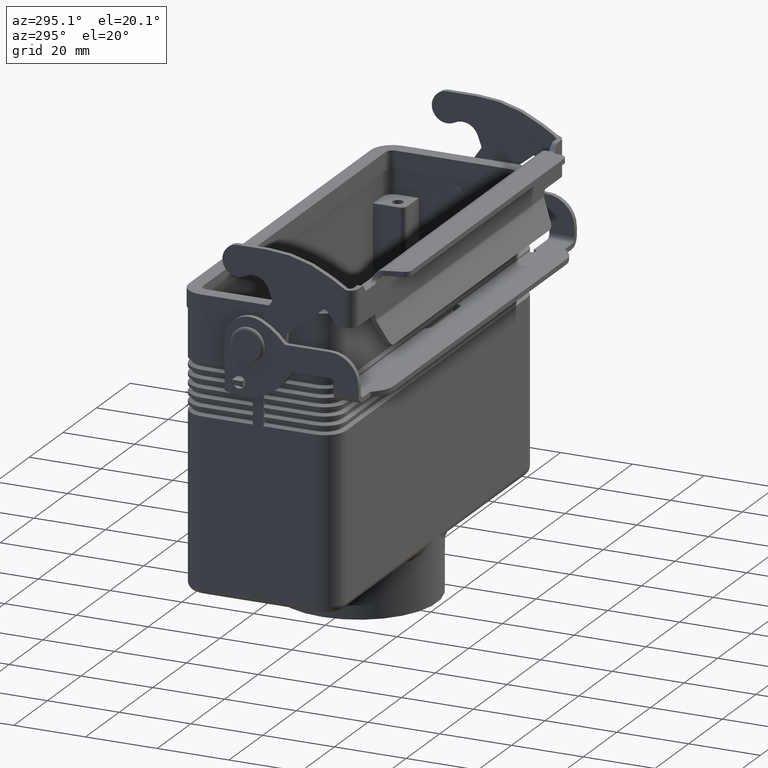
[diagram: clean part render]
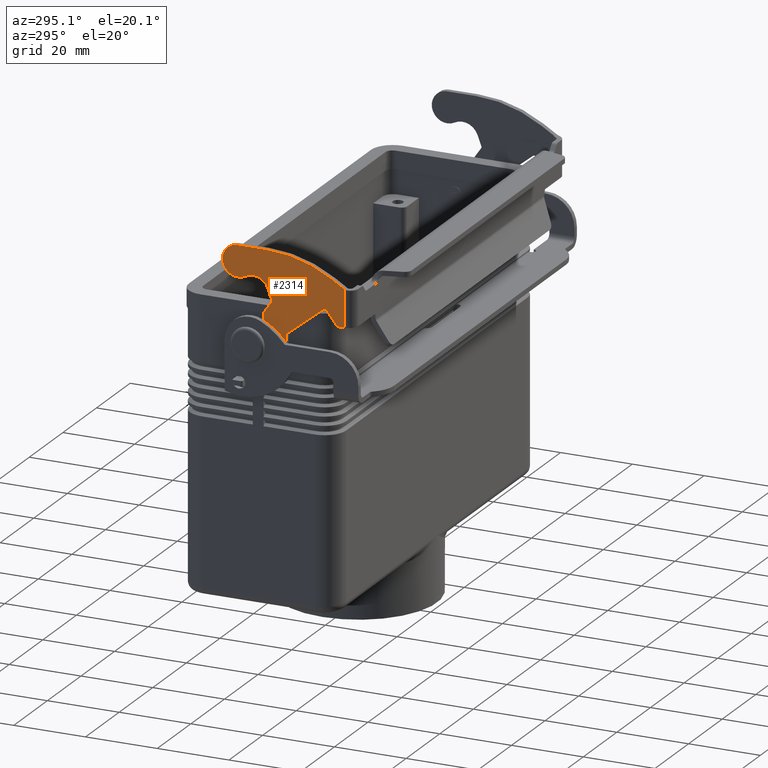
[diagram: same view with one face highlighted and labeled with its STEP entity id]
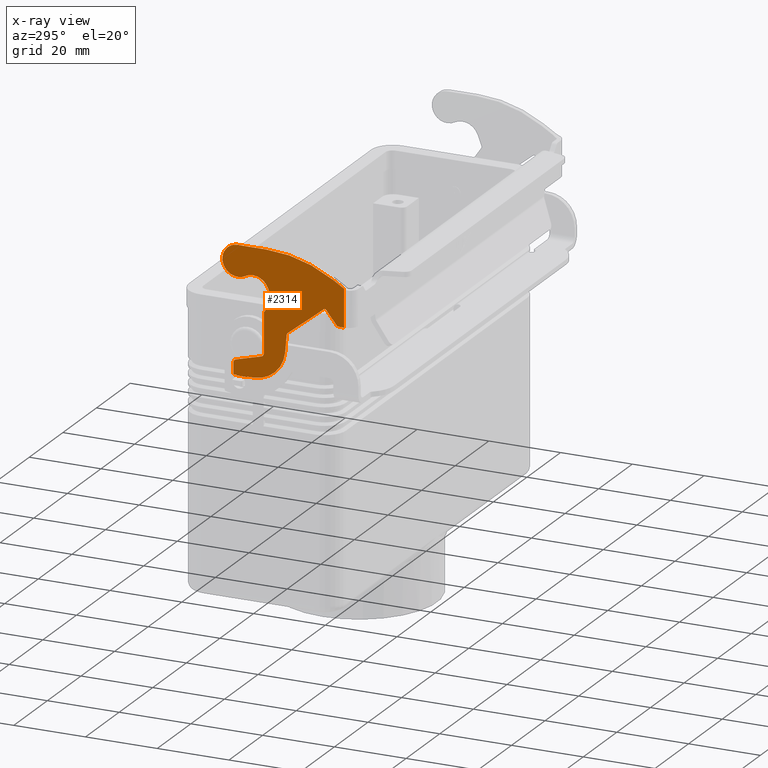
[diagram: x-ray of the same camera — body ghosted, the highlighted face saturated]
A machine part, auxiliary view. The second image highlights one B-rep face of the part: STEP entity #2314.
The next image is the same camera in x-ray: the body ghosted, the highlighted face saturated — about 0% of this face is hidden behind the body in this view.
In plain terms, the highlighted planar face has unit normal (1, 0, 0).
Its self-contained STEP definition (entity closure, byte-faithful):
#114=CARTESIAN_POINT('',(-63.0,6.342010229414635,24.462500000000006));
#115=VERTEX_POINT('',#114);
#131=CARTESIAN_POINT('',(-63.0,2.178553132241669,16.937500000000000));
#132=VERTEX_POINT('',#131);
#139=CARTESIAN_POINT('',(-63.0,4.260281680828153,20.700000000000003));
#140=DIRECTION('',(1.000000000000000,0.0,0.0));
#141=DIRECTION('',(0.0,-0.484122918275926,-0.875000000000000));
#142=AXIS2_PLACEMENT_3D('',#139,#140,#141);
#143=CIRCLE('',#142,4.299999999999999);
#144=EDGE_CURVE('',#132,#115,#143,.T.);
#2003=CARTESIAN_POINT('',(-62.999999999999972,4.500000000000000,-10.137654915007420));
#2004=VERTEX_POINT('',#2003);
#2022=CARTESIAN_POINT('',(-62.999999999999972,1.600000000000001,-10.137654915007426));
#2023=VERTEX_POINT('',#2022);
#2031=CARTESIAN_POINT('',(-62.999999999999972,4.500000000000000,-10.137654915007420));
#2032=DIRECTION('',(0.0,-1.0,0.0));
#2033=VECTOR('',#2032,2.900000000000000);
#2034=LINE('',#2031,#2033);
#2035=EDGE_CURVE('',#2004,#2023,#2034,.T.);
#2082=CARTESIAN_POINT('',(-62.999999999999979,-35.483796663666226,9.887825273182200));
#2083=DIRECTION('',(1.0,0.0,0.0));
#2084=DIRECTION('',(0.0,0.0,-1.0));
#2085=AXIS2_PLACEMENT_3D('',#2082,#2083,#2084);
#2086=PLANE('',#2085);
#2087=ORIENTED_EDGE('',*,*,#2035,.T.);
#2088=CARTESIAN_POINT('',(-63.0,1.600000000000001,-10.0));
#2089=VERTEX_POINT('',#2088);
#2090=CARTESIAN_POINT('',(-63.0,1.600000000000001,-10.0));
#2091=DIRECTION('',(2.064707E-013,0.0,-1.0));
#2092=VECTOR('',#2091,0.137654915007426);
#2093=LINE('',#2090,#2092);
#2094=EDGE_CURVE('',#2089,#2023,#2093,.T.);
#2095=ORIENTED_EDGE('',*,*,#2094,.F.);
#2096=CARTESIAN_POINT('',(-63.0,0.0,-10.0));
#2097=VERTEX_POINT('',#2096);
#2098=CARTESIAN_POINT('',(-63.0,0.0,-10.0));
#2099=DIRECTION('',(0.0,1.0,0.0));
#2100=VECTOR('',#2099,1.600000000000001);
#2101=LINE('',#2098,#2100);
#2102=EDGE_CURVE('',#2097,#2089,#2101,.T.);
#2103=ORIENTED_EDGE('',*,*,#2102,.F.);
#2104=CARTESIAN_POINT('',(-63.0,-8.965752282825712,-1.784401684728924));
#2105=VERTEX_POINT('',#2104);
#2106=CARTESIAN_POINT('',(-63.0,-5.551115E-016,-1.000000000000000));
#2107=DIRECTION('',(1.0,0.0,0.0));
#2108=DIRECTION('',(0.0,-0.996194698091746,-0.087155742747658));
#2109=AXIS2_PLACEMENT_3D('',#2106,#2107,#2108);
#2110=CIRCLE('',#2109,9.0);
#2111=EDGE_CURVE('',#2105,#2097,#2110,.T.);
#2112=ORIENTED_EDGE('',*,*,#2111,.F.);
#2113=CARTESIAN_POINT('',(-63.0,-9.388145761719624,3.043577871373832));
#2114=VERTEX_POINT('',#2113);
#2115=CARTESIAN_POINT('',(-63.0,-9.388145761719624,3.043577871373832));
#2116=DIRECTION('',(0.0,0.087155742747658,-0.996194698091746));
#2117=VECTOR('',#2116,4.846421653669671);
#2118=LINE('',#2115,#2117);
#2119=EDGE_CURVE('',#2114,#2105,#2118,.T.);
#2120=ORIENTED_EDGE('',*,*,#2119,.F.);
#2121=CARTESIAN_POINT('',(-63.0,-9.576051938572887,3.392149763092847));
#2122=VERTEX_POINT('',#2121);
#2123=CARTESIAN_POINT('',(-63.0,-9.886243110765498,3.000000000000003));
#2124=DIRECTION('',(-1.000000000000000,0.0,0.0));
#2125=DIRECTION('',(0.0,-0.996194698091746,-0.087155742747659));
#2126=AXIS2_PLACEMENT_3D('',#2123,#2124,#2125);
#2127=CIRCLE('',#2126,0.500000000000000);
#2128=EDGE_CURVE('',#2122,#2114,#2127,.T.);
#2129=ORIENTED_EDGE('',*,*,#2128,.F.);
#2130=CARTESIAN_POINT('',(-63.0,-19.689808827807390,11.392149763092847));
#2131=VERTEX_POINT('',#2130);
#2132=CARTESIAN_POINT('',(-63.0,-19.689808827807390,11.392149763092847));
#2133=DIRECTION('',(0.0,0.784299526185688,-0.620382344385223));
#2134=VECTOR('',#2133,12.895273491265641);
#2135=LINE('',#2132,#2134);
#2136=EDGE_CURVE('',#2131,#2122,#2135,.T.);
#2137=ORIENTED_EDGE('',*,*,#2136,.F.);
#2138=CARTESIAN_POINT('',(-63.0,-20.392149763092849,11.310191172192617));
#2139=VERTEX_POINT('',#2138);
#2140=CARTESIAN_POINT('',(-63.0,-19.999999999999996,11.000000000000004));
#2141=DIRECTION('',(-1.0,0.0,0.0));
#2142=DIRECTION('',(0.0,-0.620382344385220,-0.784299526185691));
#2143=AXIS2_PLACEMENT_3D('',#2140,#2141,#2142);
#2144=CIRCLE('',#2143,0.500000000000000);
#2145=EDGE_CURVE('',#2139,#2131,#2144,.T.);
#2146=ORIENTED_EDGE('',*,*,#2145,.F.);
#2147=CARTESIAN_POINT('',(-63.0,-23.215700473814316,7.740602990609832));
#2148=VERTEX_POINT('',#2147);
#2149=CARTESIAN_POINT('',(-63.0,-23.215700473814316,7.740602990609832));
#2150=DIRECTION('',(0.0,0.620382344385222,0.784299526185689));
#2151=VECTOR('',#2150,4.551307328901356);
#2152=LINE('',#2149,#2151);
#2153=EDGE_CURVE('',#2148,#2139,#2152,.T.);
#2154=ORIENTED_EDGE('',*,*,#2153,.F.);
#2155=CARTESIAN_POINT('',(-63.0,-24.000000000000004,7.360985334995051));
#2156=VERTEX_POINT('',#2155);
#2157=CARTESIAN_POINT('',(-63.0,-24.000000000000004,8.360985334995053));
#2158=DIRECTION('',(1.0,0.0,0.0));
#2159=DIRECTION('',(0.0,0.0,-1.0));
#2160=AXIS2_PLACEMENT_3D('',#2157,#2158,#2159);
#2161=CIRCLE('',#2160,1.0);
#2162=EDGE_CURVE('',#2156,#2148,#2161,.T.);
#2163=ORIENTED_EDGE('',*,*,#2162,.F.);
#2164=CARTESIAN_POINT('',(-62.999999999999972,-25.366637302590753,7.360985334995051));
#2165=VERTEX_POINT('',#2164);
#2166=CARTESIAN_POINT('',(-62.999999999999972,-25.366637302590753,7.360985334995051));
#2167=DIRECTION('',(0.0,1.0,0.0));
#2168=VECTOR('',#2167,1.366637302590750);
#2169=LINE('',#2166,#2168);
#2170=EDGE_CURVE('',#2165,#2156,#2169,.T.);
#2171=ORIENTED_EDGE('',*,*,#2170,.F.);
#2172=CARTESIAN_POINT('',(-62.999999999999972,-25.366637302590753,17.796241584191456));
#2173=VERTEX_POINT('',#2172);
#2174=CARTESIAN_POINT('',(-62.999999999999972,-25.366637302590753,7.360985334995051));
#2175=DIRECTION('',(0.0,0.0,1.0));
#2176=VECTOR('',#2175,10.435256249196406);
#2177=LINE('',#2174,#2176);
#2178=EDGE_CURVE('',#2165,#2173,#2177,.T.);
#2179=ORIENTED_EDGE('',*,*,#2178,.T.);
#2180=CARTESIAN_POINT('',(-63.0,-22.025445526428999,19.843461268790108));
#2181=VERTEX_POINT('',#2180);
#2182=CARTESIAN_POINT('',(-63.0,-22.025445526428999,19.843461268790108));
#2183=DIRECTION('',(7.253205E-015,-0.852670321965433,-0.522449348778774));
#2184=VECTOR('',#2183,3.918503658553752);
#2185=LINE('',#2182,#2184);
#2186=EDGE_CURVE('',#2181,#2173,#2185,.T.);
#2187=ORIENTED_EDGE('',*,*,#2186,.F.);
#2188=CARTESIAN_POINT('',(-63.0,-3.739718319171848,25.000000000000007));
#2189=VERTEX_POINT('',#2188);
#2190=CARTESIAN_POINT('',(-63.0,-3.739718319171848,-9.999999999999996));
#2191=DIRECTION('',(1.0,0.0,0.0));
#2192=DIRECTION('',(0.0,0.0,1.0));
#2193=AXIS2_PLACEMENT_3D('',#2190,#2191,#2192);
#2194=CIRCLE('',#2193,35.0);
#2195=EDGE_CURVE('',#2189,#2181,#2194,.T.);
#2196=ORIENTED_EDGE('',*,*,#2195,.F.);
#2197=CARTESIAN_POINT('',(-63.0,4.260281680828153,25.000000000000007));
#2198=VERTEX_POINT('',#2197);
#2199=CARTESIAN_POINT('',(-63.0,4.260281680828153,25.000000000000007));
#2200=DIRECTION('',(0.0,-1.0,0.0));
#2201=VECTOR('',#2200,8.0);
#2202=LINE('',#2199,#2201);
#2203=EDGE_CURVE('',#2198,#2189,#2202,.T.);
#2204=ORIENTED_EDGE('',*,*,#2203,.F.);
#2205=CARTESIAN_POINT('',(-63.0,4.260281680828153,20.700000000000003));
#2206=DIRECTION('',(1.000000000000000,0.0,0.0));
#2207=DIRECTION('',(0.0,-0.484122918275926,-0.875000000000000));
#2208=AXIS2_PLACEMENT_3D('',#2205,#2206,#2207);
#2209=CIRCLE('',#2208,4.299999999999999);
#2210=EDGE_CURVE('',#115,#2198,#2209,.T.);
#2211=ORIENTED_EDGE('',*,*,#2210,.F.);
#2212=ORIENTED_EDGE('',*,*,#144,.F.);
#2213=CARTESIAN_POINT('',(-63.0,-4.221356947176012,14.558892403127569));
#2214=VERTEX_POINT('',#2213);
#2215=CARTESIAN_POINT('',(-63.0,0.0,13.0));
#2216=DIRECTION('',(-1.000000000000000,0.0,0.0));
#2217=DIRECTION('',(0.0,-0.484122918275927,-0.875000000000000));
#2218=AXIS2_PLACEMENT_3D('',#2215,#2216,#2217);
#2219=CIRCLE('',#2218,4.500000000000000);
#2220=EDGE_CURVE('',#2214,#132,#2219,.T.);
#2221=ORIENTED_EDGE('',*,*,#2220,.F.);
#2222=CARTESIAN_POINT('',(-63.0,-5.287001955669658,11.673210267014177));
#2223=VERTEX_POINT('',#2222);
#2224=CARTESIAN_POINT('',(-63.0,-5.287001955669658,11.673210267014177));
#2225=DIRECTION('',(0.0,0.346420534028348,0.938079321594669));
#2226=VECTOR('',#2225,3.076160053510118);
#2227=LINE('',#2224,#2226);
#2228=EDGE_CURVE('',#2223,#2214,#2227,.T.);
#2229=ORIENTED_EDGE('',*,*,#2228,.F.);
#2230=CARTESIAN_POINT('',(-63.0,-5.228877936336266,11.215134530698654));
#2231=VERTEX_POINT('',#2230);
#2232=CARTESIAN_POINT('',(-63.0,-4.817962294872324,11.500000000000004));
#2233=DIRECTION('',(-1.0,0.0,0.0));
#2234=DIRECTION('',(0.0,0.938079321594669,-0.346420534028349));
#2235=AXIS2_PLACEMENT_3D('',#2232,#2233,#2234);
#2236=CIRCLE('',#2235,0.500000000000000);
#2237=EDGE_CURVE('',#2231,#2223,#2236,.T.);
#2238=ORIENTED_EDGE('',*,*,#2237,.F.);
#2239=CARTESIAN_POINT('',(-63.0,-3.000000000000000,8.0));
#2240=VERTEX_POINT('',#2239);
#2241=CARTESIAN_POINT('',(-63.0,-3.000000000000000,8.0));
#2242=DIRECTION('',(0.0,-0.569730938602697,0.821831282927883));
#2243=VECTOR('',#2242,3.912158854849514);
#2244=LINE('',#2241,#2243);
#2245=EDGE_CURVE('',#2240,#2231,#2244,.T.);
#2246=ORIENTED_EDGE('',*,*,#2245,.F.);
#2247=CARTESIAN_POINT('',(-63.0,-3.000000000000000,-2.999999999999998));
#2248=VERTEX_POINT('',#2247);
#2249=CARTESIAN_POINT('',(-63.0,-3.000000000000000,-2.999999999999998));
#2250=DIRECTION('',(0.0,0.0,1.0));
#2251=VECTOR('',#2250,10.999999999999998);
#2252=LINE('',#2249,#2251);
#2253=EDGE_CURVE('',#2248,#2240,#2252,.T.);
#2254=ORIENTED_EDGE('',*,*,#2253,.F.);
#2255=CARTESIAN_POINT('',(-63.0,-2.258819045102521,-3.965925826289068));
#2256=VERTEX_POINT('',#2255);
#2257=CARTESIAN_POINT('',(-63.0,-2.000000000000000,-2.999999999999998));
#2258=DIRECTION('',(-1.0,0.0,0.0));
#2259=DIRECTION('',(0.0,1.0,0.0));
#2260=AXIS2_PLACEMENT_3D('',#2257,#2258,#2259);
#2261=CIRCLE('',#2260,1.0);
#2262=EDGE_CURVE('',#2256,#2248,#2261,.T.);
#2263=ORIENTED_EDGE('',*,*,#2262,.F.);
#2264=CARTESIAN_POINT('',(-63.0,4.758819045102520,-5.846296285333391));
#2265=VERTEX_POINT('',#2264);
#2266=CARTESIAN_POINT('',(-63.0,4.758819045102520,-5.846296285333391));
#2267=DIRECTION('',(0.0,-0.965925826289068,0.258819045102520));
#2268=VECTOR('',#2267,7.265193557527783);
#2269=LINE('',#2266,#2268);
#2270=EDGE_CURVE('',#2265,#2256,#2269,.T.);
#2271=ORIENTED_EDGE('',*,*,#2270,.F.);
#2272=CARTESIAN_POINT('',(-63.0,5.500000000000002,-6.812222111622458));
#2273=VERTEX_POINT('',#2272);
#2274=CARTESIAN_POINT('',(-63.0,4.500000000000001,-6.812222111622458));
#2275=DIRECTION('',(1.0,0.0,0.0));
#2276=DIRECTION('',(0.0,1.0,0.0));
#2277=AXIS2_PLACEMENT_3D('',#2274,#2275,#2276);
#2278=CIRCLE('',#2277,1.0);
#2279=EDGE_CURVE('',#2273,#2265,#2278,.T.);
#2280=ORIENTED_EDGE('',*,*,#2279,.F.);
#2281=CARTESIAN_POINT('',(-63.0,5.500000000000000,-9.800000000000001));
#2282=VERTEX_POINT('',#2281);
#2283=CARTESIAN_POINT('',(-63.0,5.500000000000000,-9.800000000000001));
#2284=DIRECTION('',(0.0,0.0,1.0));
#2285=VECTOR('',#2284,2.987777888377543);
#2286=LINE('',#2283,#2285);
#2287=EDGE_CURVE('',#2282,#2273,#2286,.T.);
#2288=ORIENTED_EDGE('',*,*,#2287,.F.);
#2289=CARTESIAN_POINT('',(-63.0,5.300000000000001,-10.0));
#2290=VERTEX_POINT('',#2289);
#2291=CARTESIAN_POINT('',(-63.0,5.299999999999999,-9.799999999999999));
#2292=DIRECTION('',(1.0,0.0,0.0));
#2293=DIRECTION('',(0.0,0.0,-1.0));
#2294=AXIS2_PLACEMENT_3D('',#2291,#2292,#2293);
#2295=CIRCLE('',#2294,0.200000000000001);
#2296=EDGE_CURVE('',#2290,#2282,#2295,.T.);
#2297=ORIENTED_EDGE('',*,*,#2296,.F.);
#2298=CARTESIAN_POINT('',(-63.0,4.500000000000000,-10.0));
#2299=VERTEX_POINT('',#2298);
#2300=CARTESIAN_POINT('',(-63.0,4.500000000000000,-10.0));
#2301=DIRECTION('',(0.0,1.0,0.0));
#2302=VECTOR('',#2301,0.800000000000001);
#2303=LINE('',#2300,#2302);
#2304=EDGE_CURVE('',#2299,#2290,#2303,.T.);
#2305=ORIENTED_EDGE('',*,*,#2304,.F.);
#2306=CARTESIAN_POINT('',(-62.999999999999972,4.500000000000000,-10.137654915007420));
#2307=DIRECTION('',(-2.064707E-013,0.0,1.0));
#2308=VECTOR('',#2307,0.137654915007420);
#2309=LINE('',#2306,#2308);
#2310=EDGE_CURVE('',#2004,#2299,#2309,.T.);
#2311=ORIENTED_EDGE('',*,*,#2310,.F.);
#2312=EDGE_LOOP('',(#2087,#2095,#2103,#2112,#2120,#2129,#2137,#2146,#2154,#2163,#2171,#2179,#2187,#2196,#2204,#2211,#2212,#2221,#2229,#2238,#2246,#2254,#2263,#2271,#2280,#2288,#2297,#2305,#2311));
#2313=FACE_OUTER_BOUND('',#2312,.T.);
#2314=ADVANCED_FACE('',(#2313),#2086,.F.);